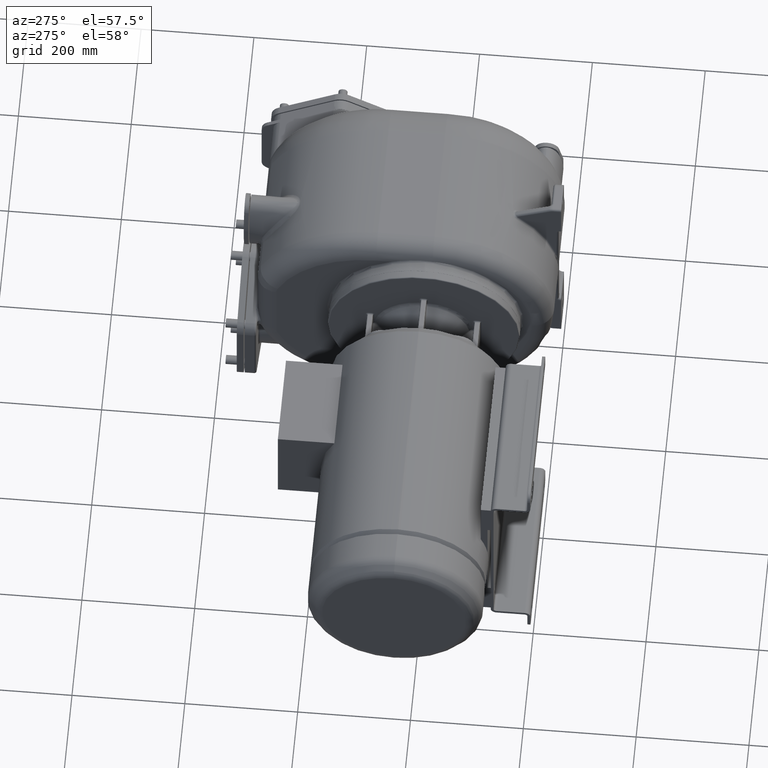
[diagram: clean part render]
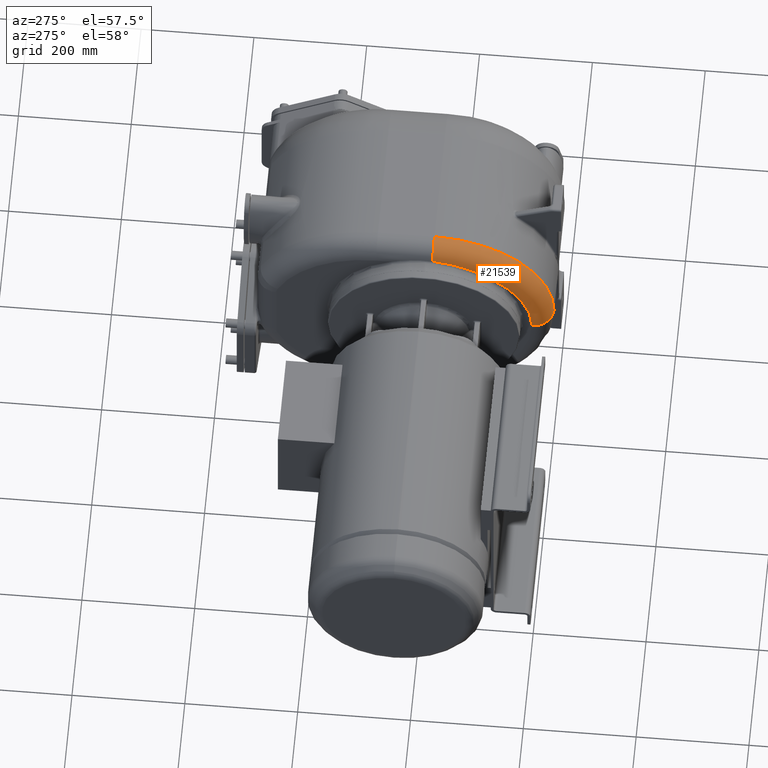
[diagram: same view with one face highlighted and labeled with its STEP entity id]
A machine part, auxiliary view. The second image highlights one B-rep face of the part: STEP entity #21539.
In plain terms, the highlighted toroidal blend (fillet) surface has major radius 176 mm and minor (blend) radius 36 mm.
Its self-contained STEP definition (entity closure, byte-faithful):
#2860=CARTESIAN_POINT('',(-1.2E2,2.17E2,1.63E2));
#2861=DIRECTION('',(0.E0,1.E0,0.E0));
#2862=DIRECTION('',(-9.648388336903E-1,0.E0,2.628422055211E-1));
#2863=AXIS2_PLACEMENT_3D('',#2860,#2861,#2862);
#2875=CARTESIAN_POINT('',(-1.559999923027E2,1.141219318900E2,1.298008796822E2));
#2876=CARTESIAN_POINT('',(-1.559999914096E2,1.148545513745E2,1.304413593023E2));
#2877=CARTESIAN_POINT('',(-1.559993120328E2,1.163301828413E2,1.317087727713E2));
#2878=CARTESIAN_POINT('',(-1.559961996366E2,1.185702754198E2,1.335705724291E2));
#2879=CARTESIAN_POINT('',(-1.559910533923E2,1.208388312651E2,1.353924176117E2));
#2880=CARTESIAN_POINT('',(-1.559838889199E2,1.231352384709E2,1.371745799978E2));
#2881=CARTESIAN_POINT('',(-1.559747353768E2,1.254595905462E2,1.389170294392E2));
#2882=CARTESIAN_POINT('',(-1.559636200313E2,1.278118162402E2,1.406197786600E2));
#2883=CARTESIAN_POINT('',(-1.559505654556E2,1.301919759069E2,1.422829674642E2));
#2884=CARTESIAN_POINT('',(-1.559355929572E2,1.326001505384E2,1.439066770063E2));
#2885=CARTESIAN_POINT('',(-1.559187207969E2,1.350366921203E2,1.454910837412E2));
#2886=CARTESIAN_POINT('',(-1.558999791482E2,1.375003194414E2,1.470352640069E2));
#2887=CARTESIAN_POINT('',(-1.558794074961E2,1.399891513895E2,1.485380100738E2));
#2888=CARTESIAN_POINT('',(-1.558570507673E2,1.425013509845E2,1.499982625196E2));
#2889=CARTESIAN_POINT('',(-1.558329434181E2,1.450367135001E2,1.514159591409E2));
#2890=CARTESIAN_POINT('',(-1.558071203331E2,1.475951203023E2,1.527910339219E2));
#2891=CARTESIAN_POINT('',(-1.557796192294E2,1.501764559844E2,1.541233707536E2));
#2892=CARTESIAN_POINT('',(-1.557504694011E2,1.527804495858E2,1.554128505744E2));
#2893=CARTESIAN_POINT('',(-1.557196975272E2,1.554070120865E2,1.566594072562E2));
#2894=CARTESIAN_POINT('',(-1.556873400573E2,1.580553442047E2,1.578625997282E2));
#2895=CARTESIAN_POINT('',(-1.556534487102E2,1.607236796160E2,1.590215880559E2));
#2896=CARTESIAN_POINT('',(-1.556180797178E2,1.634102966289E2,1.601356395388E2));
#2897=CARTESIAN_POINT('',(-1.555812850071E2,1.661141453864E2,1.612043574554E2));
#2898=CARTESIAN_POINT('',(-1.555431163192E2,1.688344843720E2,1.622274749476E2));
#2899=CARTESIAN_POINT('',(-1.555036299191E2,1.715704859383E2,1.632047015425E2));
#2900=CARTESIAN_POINT('',(-1.554628775688E2,1.743220969297E2,1.641359928762E2));
#2901=CARTESIAN_POINT('',(-1.554208969281E2,1.770893489811E2,1.650213703502E2));
#2902=CARTESIAN_POINT('',(-1.553777239336E2,1.798719785249E2,1.658607498317E2));
#2903=CARTESIAN_POINT('',(-1.553334139497E2,1.826687228286E2,1.666537303446E2));
#2904=CARTESIAN_POINT('',(-1.552880228669E2,1.854784657875E2,1.673999926813E2));
#2905=CARTESIAN_POINT('',(-1.552416119237E2,1.882999779899E2,1.680992153803E2));
#2906=CARTESIAN_POINT('',(-1.551942408181E2,1.911323463302E2,1.687511838532E2));
#2907=CARTESIAN_POINT('',(-1.551459663529E2,1.939750260389E2,1.693557684783E2));
#2908=CARTESIAN_POINT('',(-1.550968508154E2,1.968273932808E2,1.699128070405E2));
#2909=CARTESIAN_POINT('',(-1.550469571020E2,1.996888703177E2,1.704221478626E2));
#2910=CARTESIAN_POINT('',(-1.549963322467E2,2.025586175052E2,1.708836882328E2));
#2911=CARTESIAN_POINT('',(-1.549450298544E2,2.054357143993E2,1.712973073081E2));
#2912=CARTESIAN_POINT('',(-1.548931073840E2,2.083192606709E2,1.716628925015E2));
#2913=CARTESIAN_POINT('',(-1.548406250099E2,2.112083482196E2,1.719803376914E2));
#2914=CARTESIAN_POINT('',(-1.547876552957E2,2.141020779668E2,1.722495261284E2));
#2915=CARTESIAN_POINT('',(-1.547520504152E2,2.160337051347E2,1.723967763916E2));
#2916=CARTESIAN_POINT('',(-1.547341975839E2,2.17E2,1.724623192819E2));
#2918=CARTESIAN_POINT('',(-1.2E2,4.1E1,-1.3E1));
#2919=DIRECTION('',(0.E0,0.E0,1.E0));
#2920=DIRECTION('',(-1.E0,0.E0,0.E0));
#2921=AXIS2_PLACEMENT_3D('',#2918,#2919,#2920);
#2927=CARTESIAN_POINT('',(-1.2E2,2.17E2,-1.3E1));
#2928=DIRECTION('',(-1.E0,0.E0,0.E0));
#2929=DIRECTION('',(0.E0,-1.E0,0.E0));
#2930=AXIS2_PLACEMENT_3D('',#2927,#2928,#2929);
#7939=CARTESIAN_POINT('',(-1.56E2,2.17E2,-1.3E1));
#7940=DIRECTION('',(-1.E0,0.E0,0.E0));
#7941=DIRECTION('',(0.E0,-1.E0,0.E0));
#7942=AXIS2_PLACEMENT_3D('',#7939,#7940,#7941);
#16132=CARTESIAN_POINT('',(-1.2E2,2.17E2,1.99E2));
#16134=VERTEX_POINT('',#16132);
#16172=CARTESIAN_POINT('',(-1.56E2,4.1E1,-1.3E1));
#16173=VERTEX_POINT('',#16172);
#16174=CARTESIAN_POINT('',(-1.2E2,5.E0,-1.3E1));
#16175=VERTEX_POINT('',#16174);
#16518=VERTEX_POINT('',#2875);
#16519=VERTEX_POINT('',#2916);
#21524=CARTESIAN_POINT('',(-1.2E2,2.17E2,-1.3E1));
#21525=DIRECTION('',(-1.E0,0.E0,0.E0));
#21526=DIRECTION('',(0.E0,-9.999842713648E-1,-5.608656083237E-3));
#21527=AXIS2_PLACEMENT_3D('',#21524,#21525,#21526);
#21528=TOROIDAL_SURFACE('',#21527,1.76E2,3.6E1);
#21529=ORIENTED_EDGE('',*,*,#21514,.T.);
#21530=ORIENTED_EDGE('',*,*,#21438,.T.);
#21532=ORIENTED_EDGE('',*,*,#21531,.F.);
#21534=ORIENTED_EDGE('',*,*,#21533,.F.);
#21536=ORIENTED_EDGE('',*,*,#21535,.T.);
#21537=EDGE_LOOP('',(#21529,#21530,#21532,#21534,#21536));
#21538=FACE_OUTER_BOUND('',#21537,.F.);
#21539=ADVANCED_FACE('',(#21538),#21528,.T.);
#2864=CIRCLE('',#2863,3.6E1);
#2917=B_SPLINE_CURVE_WITH_KNOTS('',3,(#2875,#2876,#2877,#2878,#2879,#2880,#2881,
#2882,#2883,#2884,#2885,#2886,#2887,#2888,#2889,#2890,#2891,#2892,#2893,#2894,
#2895,#2896,#2897,#2898,#2899,#2900,#2901,#2902,#2903,#2904,#2905,#2906,#2907,
#2908,#2909,#2910,#2911,#2912,#2913,#2914,#2915,#2916),.UNSPECIFIED.,.F.,.F.,(4,
1,1,1,1,1,1,1,1,1,1,1,1,1,1,1,1,1,1,1,1,1,1,1,1,1,1,1,1,1,1,1,1,1,1,1,1,1,1,4),(
0.E0,2.564102564103E-2,5.128205128205E-2,7.692307692308E-2,1.025641025641E-1,
1.282051282051E-1,1.538461538462E-1,1.794871794872E-1,2.051282051282E-1,
2.307692307692E-1,2.564102564103E-1,2.820512820513E-1,3.076923076923E-1,
3.333333333333E-1,3.589743589744E-1,3.846153846154E-1,4.102564102564E-1,
4.358974358974E-1,4.615384615385E-1,4.871794871795E-1,5.128205128205E-1,
5.384615384615E-1,5.641025641026E-1,5.897435897436E-1,6.153846153846E-1,
6.410256410256E-1,6.666666666667E-1,6.923076923077E-1,7.179487179487E-1,
7.435897435897E-1,7.692307692308E-1,7.948717948718E-1,8.205128205128E-1,
8.461538461538E-1,8.717948717949E-1,8.974358974359E-1,9.230769230769E-1,
9.487179487179E-1,9.743589743590E-1,1.E0),.UNSPECIFIED.);
#2922=CIRCLE('',#2921,3.6E1);
#2931=CIRCLE('',#2930,2.12E2);
#7943=CIRCLE('',#7942,1.76E2);
#21438=EDGE_CURVE('',#16519,#16134,#2864,.T.);
#21514=EDGE_CURVE('',#16518,#16519,#2917,.T.);
#21531=EDGE_CURVE('',#16175,#16134,#2931,.T.);
#21533=EDGE_CURVE('',#16173,#16175,#2922,.T.);
#21535=EDGE_CURVE('',#16173,#16518,#7943,.T.);